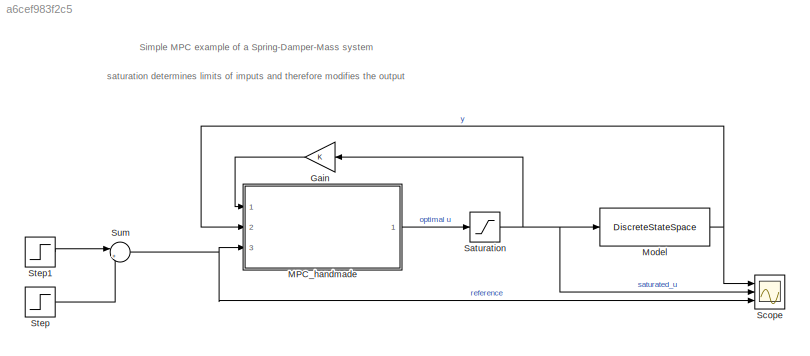
MODEL slx_a6cef983f2c5
KIND model
CONFIG AbsTol = auto
CONFIG EnableMultiTasking = off
CONFIG FixedStep = 0.05
CONFIG MaxStep = auto
CONFIG MinStep = auto
CONFIG RelTol = 1e-3
CONFIG SampleTimeConstraint = Unconstrained
CONFIG SolverName = FixedStepDiscrete
CONFIG StartTime = 0.0
CONFIG StopTime = 10.0
WORKSPACE source: mxarray member
WORKSPACE Asim = [-0.0455 -0.0273 -0.0273 -0.0273 -0.0455 -0.0273 -0.0273 -0.0273 -0.0455]
BLOCK [Gain] Gain
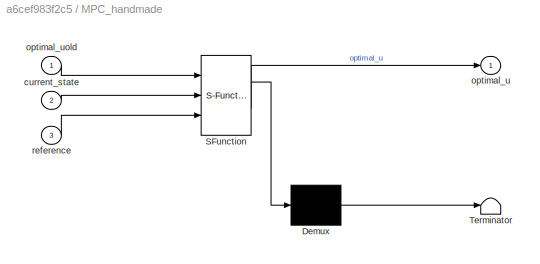
BLOCK [SubSystem] MPC_handmade
  ErrorFcn = Stateflow.Translate.translate
  PermitHierarchicalResolution = ExplicitOnly
  Ports = [3, 1]
  RequestExecContextInheritance = off
  SFBlockType = MATLAB Function
  TreatAsAtomicUnit = on
BLOCK [Demux] MPC_handmade/ Demux 
  Outputs = 1
  Ports = [1, 1]
BLOCK [S-Function] MPC_handmade/ SFunction 
  EnableBusSupport = on
  FunctionName = sf_sfun
  PortCounts = [3 2]
  Ports = [3, 2]
  SFcnIsStateOwnerBlock = off
  SFunctionDeploymentMode = off
  Tag = Stateflow S-Function 2
BLOCK [Terminator] MPC_handmade/ Terminator 
BLOCK [Inport] MPC_handmade/current_state
  Port = 2
BLOCK [Outport] MPC_handmade/optimal_u
BLOCK [Inport] MPC_handmade/optimal_uold
BLOCK [Inport] MPC_handmade/reference
  Port = 3
BLOCK [DiscreteStateSpace] Model
  A = [ 0.9988    0.0464;\n   -0.0464    0.8596]
  B = [0.0012;\n    0.0464]
  C = eye(2)
  D = zeros(2,1)
  InitialCondition = [0 0]
  SampleTime = -1
BLOCK [Saturate] Saturation
  LowerLimit = -5
  UpperLimit = 100
BLOCK [Scope] Scope
  Floating = off
  NumInputPorts = 3
  Ports = [3]
  ScopeSpecificationString = Simulink.scopes.TimeScopeBlockCfg('CurrentConfiguration', extmgr.ConfigurationSet(extmgr.Configuration('Core','General UI',true),extmgr.Configuration('Core','Source UI',true),extmgr.Configuration('Sources','WiredSimulink',true),extmgr.Configuration('Visuals','Time Domain',true,'SerializedDisplays',{struct('MinYLimReal','-2.44742','MaxYLimReal','16.18435','YLabelReal','','MinYLimMag','0.00000','Max...<+1662ch>
BLOCK [Step] Step
  After = -2
  SampleTime = 0
  Time = 7
BLOCK [Step] Step1
  After = 2
  SampleTime = 0
BLOCK [Sum] Sum
  Inputs = |++
  Ports = [2, 1]
ANNOTATION (root): saturation determines limits of imputs and therefore modifies the output
ANNOTATION (root): Simple MPC example of a Spring-Damper-Mass system
LINE Gain:1 -> MPC_handmade:1
LINE MPC_handmade:1 -> Saturation:1
NET Model:1 -> MPC_handmade:2, Scope:1
NET Saturation:1 -> Gain:1, Model:1, Scope:2
LINE Step1:1 -> Sum:1
LINE Step:1 -> Sum:2
NET Sum:1 -> MPC_handmade:3, Scope:3
note: NET lines group one-source signal fan-out (src -> all destinations, sorted); 1:1 wires keep LINE
CHART MPC_handmade states=1 transitions=1
  STATE_LABEL 'eML_blk_kernel()'
  STATE_LABEL 'SCRIPT:\nfunction optimal_u = MPCmimo_handmade(optimal_uold,current_state,reference)\n% J = [8 -3 -3; -3 8 -3; -3 -3 8];\n% F = 0.2*eye(3);\n% Ap = -J\\F;\n% Bp = inv(J);\nCp = eye(2);\nm = 1;\nb = 3;\nk = 1;\n% Continuous matrices\nAc =[0 1; -k/m -b/m];\nBc =[0;1];\n%%% Discrete after [Ad,Bd,Cd,Dd] = c2dm(Ap,Bp,Cp,Dp,Delta_t) with delta_t=\n%%% 0.05\nAp = [ 0.9988    0.0464;\n   -0.0464    0.8596];\nBp = [0.0012;\n...<+1483ch>'
CHART  states=0 transitions=0
